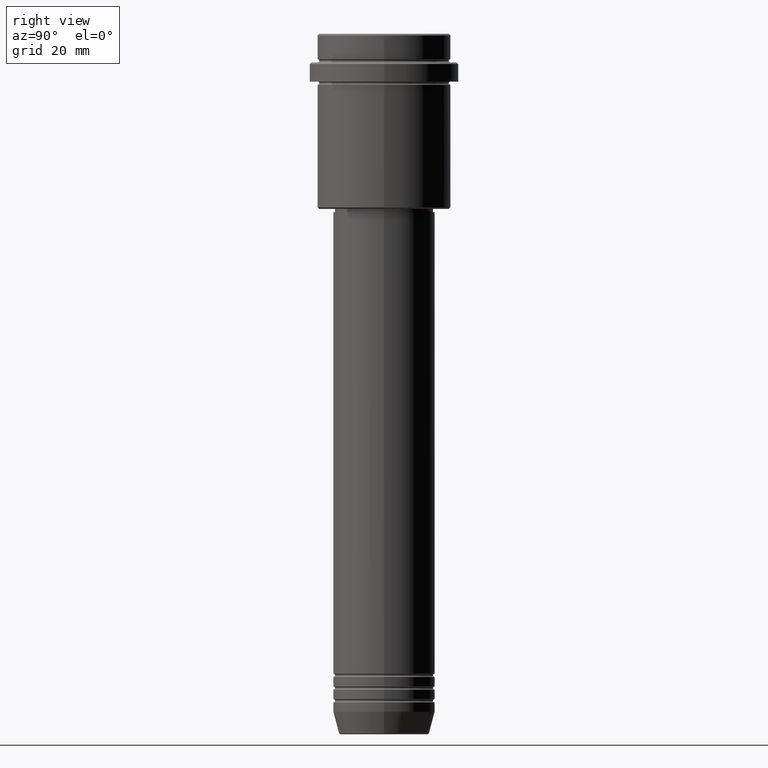
[diagram: clean part render]
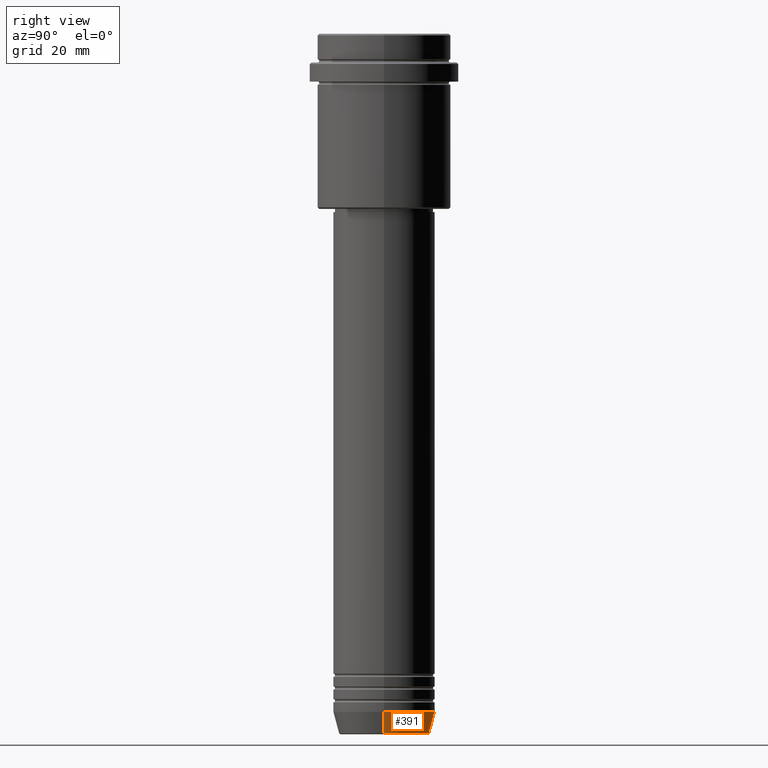
[diagram: same view with one face highlighted and labeled with its STEP entity id]
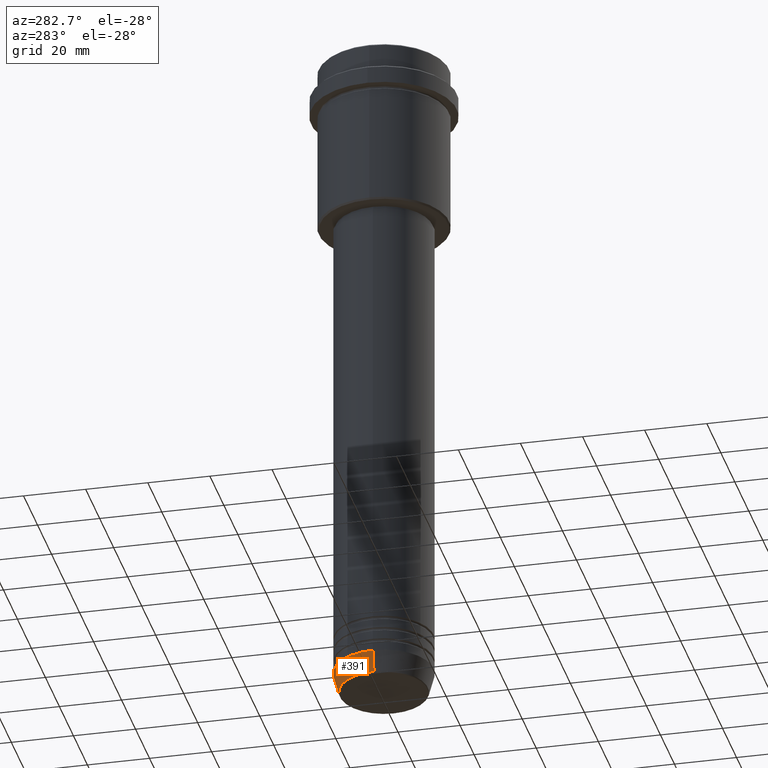
[diagram: same view with one face highlighted and labeled with its STEP entity id]
A machine part, right view. The second image highlights one B-rep face of the part: STEP entity #391.
A second angle (auxiliary view) of the same face is appended — the face is thin or edge-on in the first view.
In plain terms, the highlighted conical surface has half-angle 15 deg.
Its self-contained STEP definition (entity closure, byte-faithful):
#16 = FACE_OUTER_BOUND ( 'NONE', #942, .T. ) ;
#63 = CARTESIAN_POINT ( 'NONE',  ( 16.00000000000000000, 0.000000000000000000, -213.0000000000000284 ) ) ;
#120 = DIRECTION ( 'NONE',  ( 1.000000000000000000, 0.000000000000000000, 0.000000000000000000 ) ) ;
#188 = DIRECTION ( 'NONE',  ( -0.000000000000000000, -0.000000000000000000, 1.000000000000000000 ) ) ;
#213 = VERTEX_POINT ( 'NONE', #490 ) ;
#282 = EDGE_CURVE ( 'NONE', #759, #1077, #362, .T. ) ;
#328 = ORIENTED_EDGE ( 'NONE', *, *, #282, .F. ) ;
#348 = CARTESIAN_POINT ( 'NONE',  ( 0.000000000000000000, 0.000000000000000000, -213.0000000000000284 ) ) ;
#350 = ORIENTED_EDGE ( 'NONE', *, *, #622, .T. ) ;
#351 = DIRECTION ( 'NONE',  ( -0.2588190451025213501, 3.169619151431772337E-17, 0.9659258262890680902 ) ) ;
#362 = CIRCLE ( 'NONE', #409, 16.00000000000000000 ) ;
#389 = VECTOR ( 'NONE', #351, 1000.000000000000000 ) ;
#391 = ADVANCED_FACE ( 'NONE', ( #16 ), #682, .T. ) ;
#409 = AXIS2_PLACEMENT_3D ( 'NONE', #840, #188, #504 ) ;
#416 = CARTESIAN_POINT ( 'NONE',  ( -14.22365507213718239, 1.850665122131322942E-15, -219.6294095225512706 ) ) ;
#430 = CARTESIAN_POINT ( 'NONE',  ( 16.00000000000000000, 0.000000000000000000, -213.0000000000000284 ) ) ;
#475 = CARTESIAN_POINT ( 'NONE',  ( -16.00000000000000000, 1.959434878635765131E-15, -213.0000000000000284 ) ) ;
#490 = CARTESIAN_POINT ( 'NONE',  ( 14.22365507213718239, 0.000000000000000000, -219.6294095225512706 ) ) ;
#504 = DIRECTION ( 'NONE',  ( 1.000000000000000000, 0.000000000000000000, 0.000000000000000000 ) ) ;
#622 = EDGE_CURVE ( 'NONE', #701, #1077, #914, .T. ) ;
#682 = CONICAL_SURFACE ( 'NONE', #901, 16.00000000000000000, 0.2617993877991500740 ) ;
#692 = CARTESIAN_POINT ( 'NONE',  ( -16.00000000000000000, 1.959434878635765131E-15, -213.0000000000000284 ) ) ;
#701 = VERTEX_POINT ( 'NONE', #416 ) ;
#728 = EDGE_CURVE ( 'NONE', #213, #701, #1302, .T. ) ;
#759 = VERTEX_POINT ( 'NONE', #63 ) ;
#765 = ORIENTED_EDGE ( 'NONE', *, *, #728, .T. ) ;
#772 = AXIS2_PLACEMENT_3D ( 'NONE', #1040, #1033, #815 ) ;
#783 = ORIENTED_EDGE ( 'NONE', *, *, #1384, .F. ) ;
#815 = DIRECTION ( 'NONE',  ( 1.000000000000000000, 0.000000000000000000, 0.000000000000000000 ) ) ;
#816 = VECTOR ( 'NONE', #1410, 1000.000000000000000 ) ;
#840 = CARTESIAN_POINT ( 'NONE',  ( 0.000000000000000000, 0.000000000000000000, -213.0000000000000284 ) ) ;
#851 = LINE ( 'NONE', #430, #816 ) ;
#901 = AXIS2_PLACEMENT_3D ( 'NONE', #348, #1199, #120 ) ;
#914 = LINE ( 'NONE', #692, #389 ) ;
#942 = EDGE_LOOP ( 'NONE', ( #765, #350, #328, #783 ) ) ;
#1033 = DIRECTION ( 'NONE',  ( -0.000000000000000000, -0.000000000000000000, 1.000000000000000000 ) ) ;
#1040 = CARTESIAN_POINT ( 'NONE',  ( 0.000000000000000000, 0.000000000000000000, -219.6294095225512706 ) ) ;
#1077 = VERTEX_POINT ( 'NONE', #475 ) ;
#1199 = DIRECTION ( 'NONE',  ( -0.000000000000000000, -0.000000000000000000, 1.000000000000000000 ) ) ;
#1302 = CIRCLE ( 'NONE', #772, 14.22365507213718239 ) ;
#1384 = EDGE_CURVE ( 'NONE', #213, #759, #851, .T. ) ;
#1410 = DIRECTION ( 'NONE',  ( 0.2588190451025213501, 0.000000000000000000, 0.9659258262890680902 ) ) ;